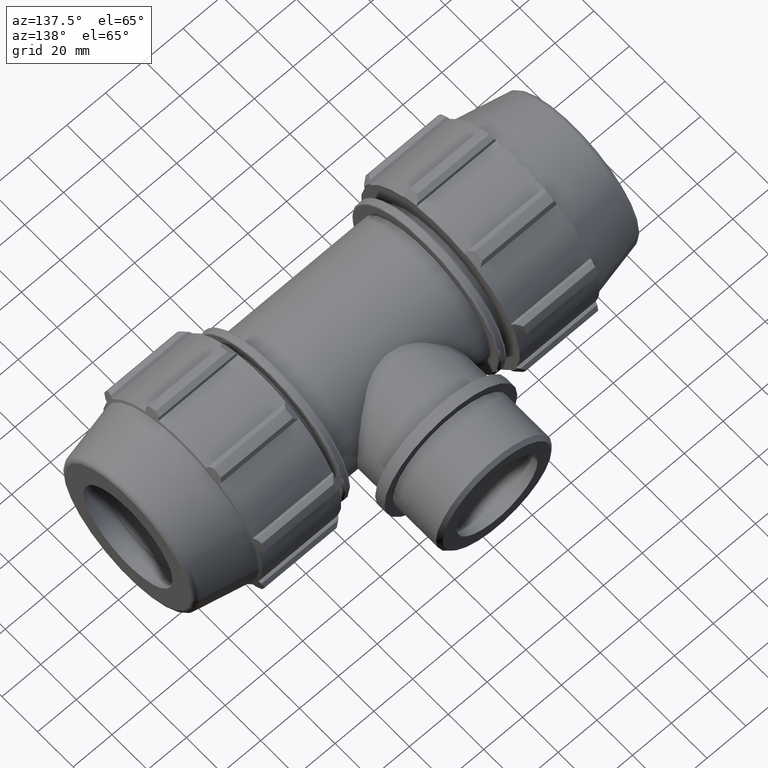
[diagram: clean part render]
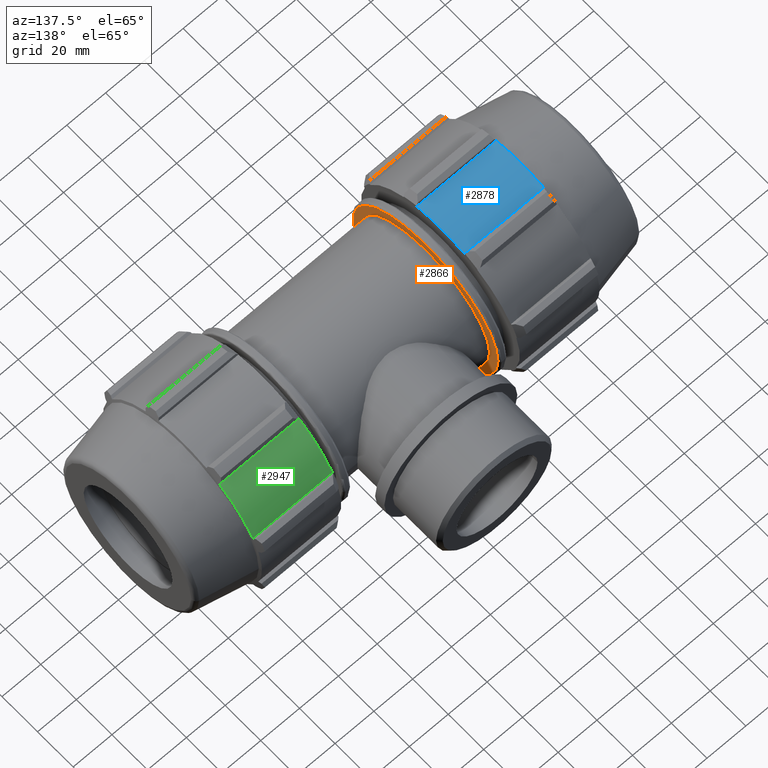
[diagram: same view with three faces highlighted in distinct colors, each labeled with its STEP entity id]
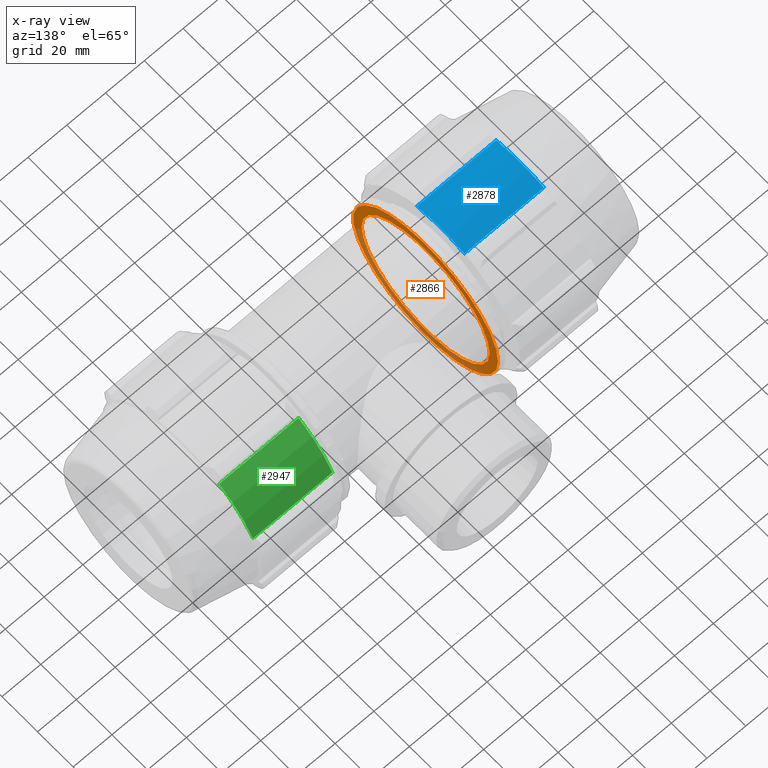
[diagram: x-ray of the same camera — body ghosted, the three highlighted faces saturated]
A machine part, auxiliary view with three faces highlighted in distinct colors.
The next image is the same camera in x-ray (body ghosted, the three faces saturated) — at least one of them is partly hidden behind the body in this view.
Their STEP definitions:

[orange] entity #2866 — the highlighted planar face has unit normal (-1, 0, 0).
#47=PLANE('',#3082);
#218=CIRCLE('',#3081,40.76);
#219=CIRCLE('',#3083,36.);
#724=FACE_BOUND('',#982,.T.);
#809=FACE_OUTER_BOUND('',#981,.T.);
#981=EDGE_LOOP('',(#2090));
#982=EDGE_LOOP('',(#2091));
#1263=VERTEX_POINT('',#4582);
#1264=VERTEX_POINT('',#4585);
#1588=EDGE_CURVE('',#1263,#1263,#218,.T.);
#1589=EDGE_CURVE('',#1264,#1264,#219,.T.);
#2090=ORIENTED_EDGE('',*,*,#1588,.F.);
#2091=ORIENTED_EDGE('',*,*,#1589,.F.);
#2866=ADVANCED_FACE('',(#809,#724),#47,.F.);
#3081=AXIS2_PLACEMENT_3D('',#4583,#3556,#3557);
#3082=AXIS2_PLACEMENT_3D('',#4584,#3558,#3559);
#3083=AXIS2_PLACEMENT_3D('',#4586,#3560,#3561);
#3556=DIRECTION('center_axis',(-1.,5.59195078520197E-16,0.));
#3557=DIRECTION('ref_axis',(-5.59195078520197E-16,-1.,1.83697019872103E-16));
#3558=DIRECTION('center_axis',(-1.,5.59195078520197E-16,0.));
#3559=DIRECTION('ref_axis',(0.,0.,1.));
#3560=DIRECTION('center_axis',(1.,-5.59195078520197E-16,0.));
#3561=DIRECTION('ref_axis',(0.,0.,-1.));
#4582=CARTESIAN_POINT('',(-38.3333333333334,40.76,-1.24791508833115E-14));
#4583=CARTESIAN_POINT('Origin',(-38.3333333333334,2.14358113432742E-14,
0.));
#4584=CARTESIAN_POINT('Origin',(-38.3333333333334,41.76,0.));
#4585=CARTESIAN_POINT('',(-38.3333333333334,36.,0.));
#4586=CARTESIAN_POINT('Origin',(-38.3333333333334,2.14358113432742E-14,
0.));

[blue] entity #2878 — the highlighted cylindrical surface (partial cylindrical patch) has radius 44.64 mm, axis along (1, -0, 0).
#184=CIRCLE('',#3001,44.64);
#209=CIRCLE('',#3054,44.64);
#355=LINE('',#4453,#553);
#385=LINE('',#4603,#583);
#553=VECTOR('',#3437,40.9862346201208);
#583=VECTOR('',#3589,40.9862346201208);
#821=FACE_OUTER_BOUND('',#994,.T.);
#994=EDGE_LOOP('',(#2142,#2143,#2144,#2145));
#1175=VERTEX_POINT('',#4253);
#1176=VERTEX_POINT('',#4255);
#1229=VERTEX_POINT('',#4451);
#1252=VERTEX_POINT('',#4523);
#1454=EDGE_CURVE('',#1175,#1176,#184,.T.);
#1531=EDGE_CURVE('',#1175,#1229,#355,.T.);
#1561=EDGE_CURVE('',#1252,#1229,#209,.T.);
#1595=EDGE_CURVE('',#1176,#1252,#385,.T.);
#2142=ORIENTED_EDGE('',*,*,#1561,.F.);
#2143=ORIENTED_EDGE('',*,*,#1595,.F.);
#2144=ORIENTED_EDGE('',*,*,#1454,.F.);
#2145=ORIENTED_EDGE('',*,*,#1531,.T.);
#2621=CYLINDRICAL_SURFACE('',#3095,44.64);
#2878=ADVANCED_FACE('',(#821),#2621,.T.);
#3001=AXIS2_PLACEMENT_3D('',#4256,#3326,#3327);
#3054=AXIS2_PLACEMENT_3D('',#4525,#3485,#3486);
#3095=AXIS2_PLACEMENT_3D('',#4604,#3590,#3591);
#3326=DIRECTION('center_axis',(1.,-5.59195078520197E-16,0.));
#3327=DIRECTION('ref_axis',(3.11658636217408E-16,0.300705799504273,-0.953716950748227));
#3437=DIRECTION('',(-1.,6.86255949476083E-16,-1.10407487444812E-16));
#3485=DIRECTION('center_axis',(-1.,6.86255949476083E-16,-1.10407487444812E-16));
#3486=DIRECTION('ref_axis',(3.11658636217408E-16,0.300705799504273,-0.953716950748227));
#3589=DIRECTION('',(-1.,6.86255949476083E-16,-1.10407487444812E-16));
#3590=DIRECTION('center_axis',(1.,-6.86255949476083E-16,1.10407487444812E-16));
#3591=DIRECTION('ref_axis',(3.11658636217408E-16,0.300705799504273,-0.953716950748227));
#4253=CARTESIAN_POINT('',(-46.,13.4235068898708,42.5739246814009));
#4255=CARTESIAN_POINT('',(-46.0000000000001,-13.4235068898707,42.5739246814009));
#4256=CARTESIAN_POINT('Origin',(-46.0000000000001,2.31884583716297E-14,
2.53451524029938E-15));
#4451=CARTESIAN_POINT('',(-86.9862346201208,13.4235068898708,42.5739246814009));
#4453=CARTESIAN_POINT('',(-46.,13.4235068898708,42.5739246814009));
#4523=CARTESIAN_POINT('',(-86.9862346201208,-13.4235068898707,42.5739246814009));
#4525=CARTESIAN_POINT('Origin',(-86.9862346201208,5.13155057263102E-14,
-1.9906719439317E-15));
#4603=CARTESIAN_POINT('',(-46.0000000000001,-13.4235068898707,42.5739246814009));
#4604=CARTESIAN_POINT('Origin',(-46.0000000000001,2.31884583716297E-14,
2.53451524029938E-15));

[green] entity #2947 — the highlighted cylindrical surface (partial cylindrical patch) has radius 44.64 mm, axis along (1, 0, -0).
#228=CIRCLE('',#3117,44.64);
#255=CIRCLE('',#3173,44.64);
#451=LINE('',#4895,#649);
#484=LINE('',#5028,#682);
#649=VECTOR('',#3785,40.9862346201208);
#682=VECTOR('',#3904,40.9862346201208);
#890=FACE_OUTER_BOUND('',#1079,.T.);
#1079=EDGE_LOOP('',(#2499,#2500,#2501,#2502));
#1279=VERTEX_POINT('',#4653);
#1280=VERTEX_POINT('',#4655);
#1356=VERTEX_POINT('',#4893);
#1367=VERTEX_POINT('',#4933);
#1614=EDGE_CURVE('',#1279,#1280,#228,.T.);
#1713=EDGE_CURVE('',#1279,#1356,#451,.T.);
#1729=EDGE_CURVE('',#1367,#1356,#255,.T.);
#1776=EDGE_CURVE('',#1280,#1367,#484,.T.);
#2499=ORIENTED_EDGE('',*,*,#1729,.F.);
#2500=ORIENTED_EDGE('',*,*,#1776,.F.);
#2501=ORIENTED_EDGE('',*,*,#1614,.F.);
#2502=ORIENTED_EDGE('',*,*,#1713,.T.);
#2634=CYLINDRICAL_SURFACE('',#3220,44.64);
#2947=ADVANCED_FACE('',(#890),#2634,.T.);
#3117=AXIS2_PLACEMENT_3D('',#4656,#3642,#3643);
#3173=AXIS2_PLACEMENT_3D('',#4935,#3818,#3819);
#3220=AXIS2_PLACEMENT_3D('',#5052,#3939,#3940);
#3642=DIRECTION('center_axis',(-1.,-5.59195078520197E-16,0.));
#3643=DIRECTION('ref_axis',(2.11580240729234E-16,-0.461748613235034,-0.887010833178222));
#3785=DIRECTION('',(1.,6.08186066410088E-16,-7.80698830659949E-17));
#3818=DIRECTION('center_axis',(1.,6.08186066410088E-16,-7.80698830659949E-17));
#3819=DIRECTION('ref_axis',(2.11580240729234E-16,-0.461748613235034,-0.887010833178222));
#3904=DIRECTION('',(1.,6.08186066410088E-16,-7.80698830659949E-17));
#3939=DIRECTION('center_axis',(1.,6.08186066410088E-16,-7.80698830659949E-17));
#3940=DIRECTION('ref_axis',(2.11580240729234E-16,-0.461748613235034,-0.887010833178222));
#4653=CARTESIAN_POINT('',(46.,20.6124580948119,39.5961635930758));
#4655=CARTESIAN_POINT('',(46.,39.5961635930758,20.6124580948119));
#4656=CARTESIAN_POINT('Origin',(46.0000000000001,2.4980631285066E-14,1.79217291343635E-15));
#4893=CARTESIAN_POINT('',(86.9862346201208,20.612458094812,39.5961635930758));
#4895=CARTESIAN_POINT('',(46.,20.6124580948119,39.5961635930758));
#4933=CARTESIAN_POINT('',(86.9862346201208,39.5961635930759,20.6124580948119));
#4935=CARTESIAN_POINT('Origin',(86.9862346201208,4.99078880956383E-14,-1.40761763067191E-15));
#5028=CARTESIAN_POINT('',(46.,39.5961635930758,20.6124580948119));
#5052=CARTESIAN_POINT('Origin',(46.0000000000001,2.4980631285066E-14,1.79217291343635E-15));